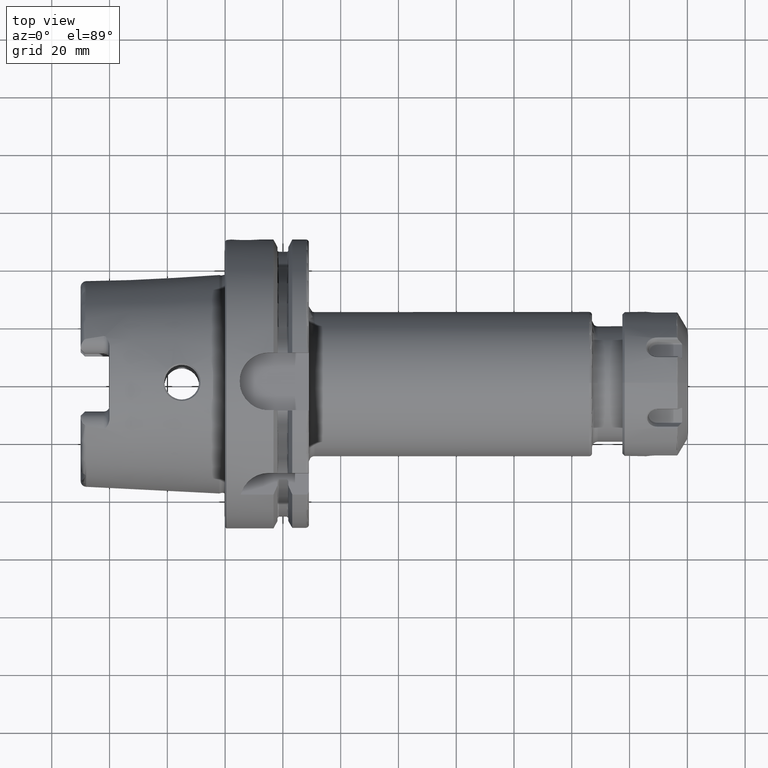
[diagram: clean part render]
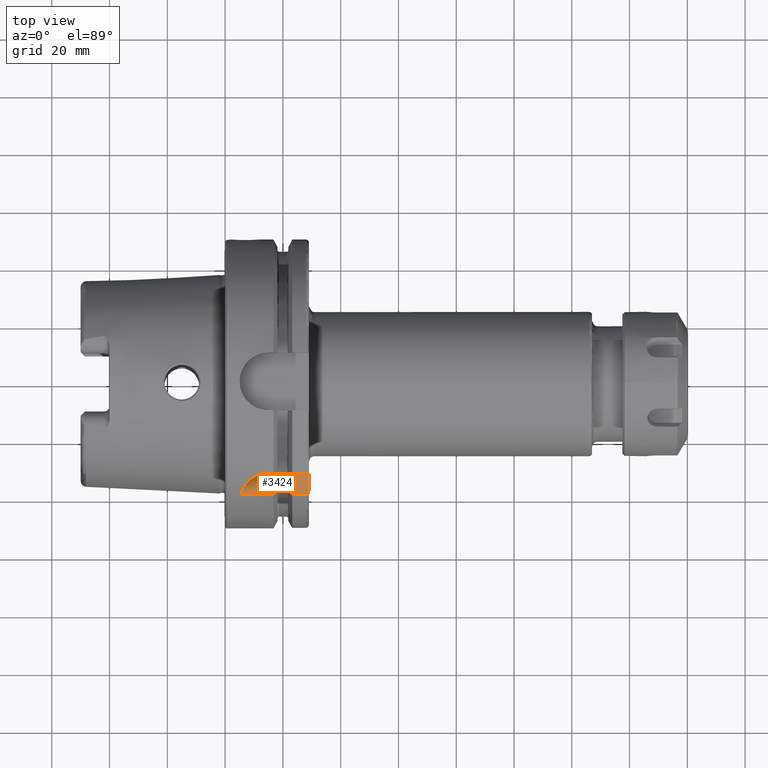
[diagram: same view with one face highlighted and labeled with its STEP entity id]
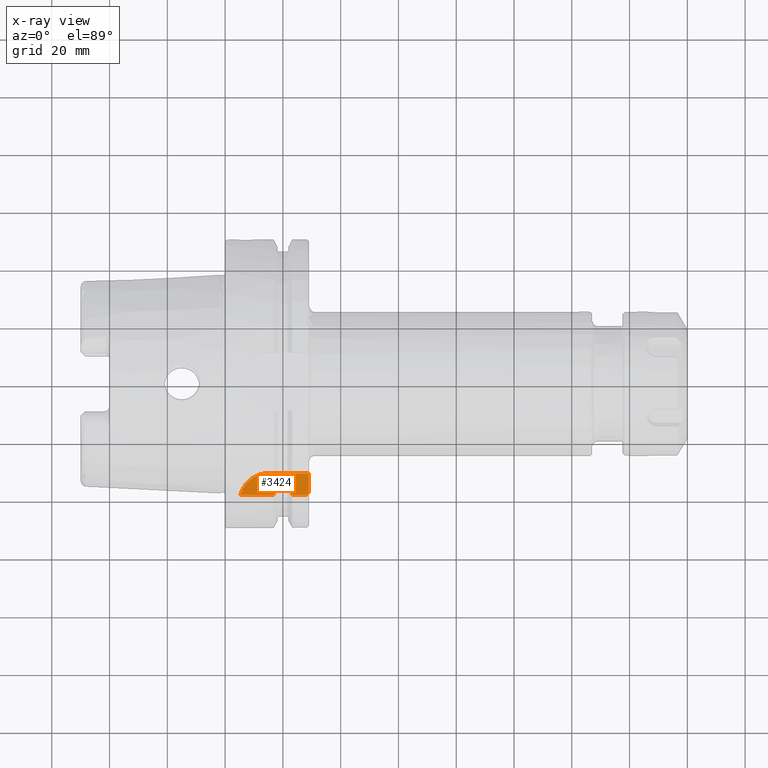
[diagram: x-ray of the same camera — body ghosted, the highlighted face saturated]
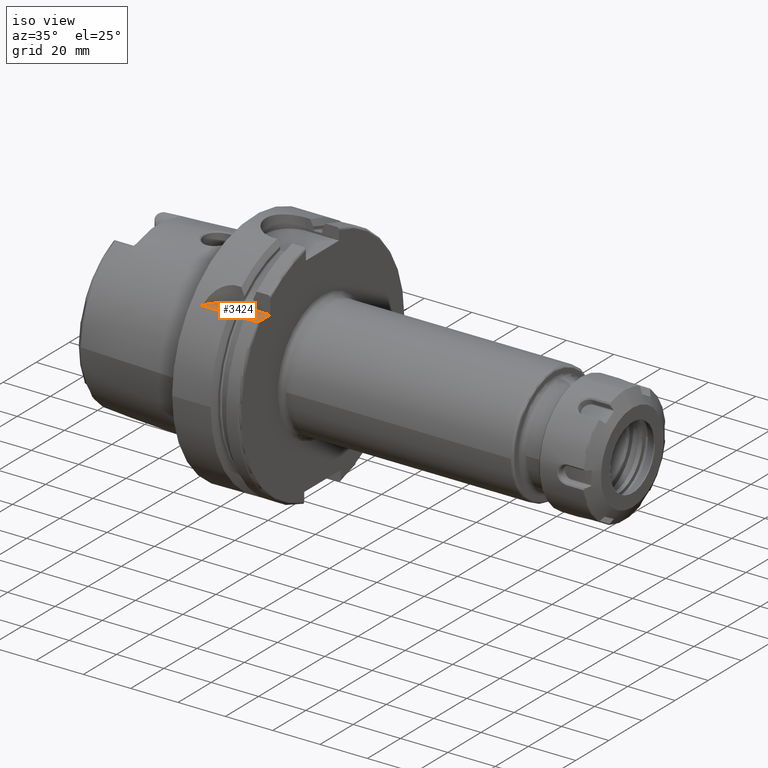
[diagram: same view with one face highlighted and labeled with its STEP entity id]
A machine part, top view. The second image highlights one B-rep face of the part: STEP entity #3424.
The next image is the same camera in x-ray: the body ghosted, the highlighted face saturated — about 0% of this face is hidden behind the body in this view.
A second angle (iso view) of the same face is appended — the face is thin or edge-on in the first view.
In plain terms, the highlighted planar face has unit normal (0, 0, 1).
Its self-contained STEP definition (entity closure, byte-faithful):
#115=(
BOUNDED_CURVE()
B_SPLINE_CURVE(2,(#6027,#6028,#6029),.UNSPECIFIED.,.F.,.F.)
B_SPLINE_CURVE_WITH_KNOTS((3,3),(0.,0.343884390880418),.UNSPECIFIED.)
CURVE()
GEOMETRIC_REPRESENTATION_ITEM()
RATIONAL_B_SPLINE_CURVE((1.,1.00052016256811,1.))
REPRESENTATION_ITEM('')
);
#116=(
BOUNDED_CURVE()
B_SPLINE_CURVE(2,(#6059,#6060,#6061),.UNSPECIFIED.,.F.,.F.)
B_SPLINE_CURVE_WITH_KNOTS((3,3),(0.,0.343884390880419),.UNSPECIFIED.)
CURVE()
GEOMETRIC_REPRESENTATION_ITEM()
RATIONAL_B_SPLINE_CURVE((1.,1.00052016257005,1.))
REPRESENTATION_ITEM('')
);
#171=B_SPLINE_CURVE_WITH_KNOTS('',3,(#6033,#6034,#6035,#6036,#6037,#6038,
#6039,#6040,#6041,#6042),.UNSPECIFIED.,.F.,.F.,(4,2,2,2,4),(-0.175716275951497,
-0.159022149647861,-0.139262857016594,-0.115342898112829,-0.0876407705892814),
 .UNSPECIFIED.);
#172=B_SPLINE_CURVE_WITH_KNOTS('',3,(#6046,#6047,#6048,#6049,#6050,#6051,
#6052,#6053,#6054,#6055),.UNSPECIFIED.,.F.,.F.,(4,2,2,2,4),(0.0876407705892814,
0.115342898112828,0.139262857016592,0.15902214964786,0.175716275951495),
 .UNSPECIFIED.);
#173=B_SPLINE_CURVE_WITH_KNOTS('',3,(#6064,#6065,#6066,#6067,#6068,#6069,
#6070,#6071,#6072,#6073),.UNSPECIFIED.,.F.,.F.,(4,2,2,2,4),(-0.170825962094808,
-0.118543630596578,-0.0729156509442915,-0.0340271521483428,0.),
 .UNSPECIFIED.);
#320=PLANE('',#3766);
#460=FACE_OUTER_BOUND('',#670,.T.);
#670=EDGE_LOOP('',(#2506,#2507,#2508,#2509,#2510,#2511,#2512,#2513,#2514,
#2515,#2516,#2517,#2518));
#851=LINE('',#5093,#1039);
#894=LINE('',#5974,#1082);
#899=LINE('',#6025,#1087);
#900=LINE('',#6031,#1088);
#901=LINE('',#6044,#1089);
#902=LINE('',#6057,#1090);
#903=LINE('',#6063,#1091);
#1039=VECTOR('',#4103,10.);
#1082=VECTOR('',#4320,10.);
#1087=VECTOR('',#4327,10.);
#1088=VECTOR('',#4328,10.);
#1089=VECTOR('',#4329,10.);
#1090=VECTOR('',#4330,10.);
#1091=VECTOR('',#4331,10.);
#1280=CIRCLE('',#3764,10.);
#1428=VERTEX_POINT('',#5091);
#1429=VERTEX_POINT('',#5092);
#1523=VERTEX_POINT('',#5954);
#1525=VERTEX_POINT('',#5968);
#1535=VERTEX_POINT('',#6024);
#1536=VERTEX_POINT('',#6026);
#1537=VERTEX_POINT('',#6030);
#1538=VERTEX_POINT('',#6032);
#1539=VERTEX_POINT('',#6043);
#1540=VERTEX_POINT('',#6045);
#1541=VERTEX_POINT('',#6056);
#1542=VERTEX_POINT('',#6058);
#1543=VERTEX_POINT('',#6062);
#1768=EDGE_CURVE('',#1428,#1429,#851,.T.);
#1894=EDGE_CURVE('',#1525,#1523,#1280,.T.);
#1897=EDGE_CURVE('',#1428,#1525,#894,.T.);
#1907=EDGE_CURVE('',#1535,#1523,#899,.T.);
#1908=EDGE_CURVE('',#1536,#1535,#115,.T.);
#1909=EDGE_CURVE('',#1537,#1536,#900,.T.);
#1910=EDGE_CURVE('',#1538,#1537,#171,.T.);
#1911=EDGE_CURVE('',#1539,#1538,#901,.T.);
#1912=EDGE_CURVE('',#1540,#1539,#172,.T.);
#1913=EDGE_CURVE('',#1541,#1540,#902,.T.);
#1914=EDGE_CURVE('',#1542,#1541,#116,.T.);
#1915=EDGE_CURVE('',#1543,#1542,#903,.T.);
#1916=EDGE_CURVE('',#1429,#1543,#173,.T.);
#2506=ORIENTED_EDGE('',*,*,#1907,.F.);
#2507=ORIENTED_EDGE('',*,*,#1908,.F.);
#2508=ORIENTED_EDGE('',*,*,#1909,.F.);
#2509=ORIENTED_EDGE('',*,*,#1910,.F.);
#2510=ORIENTED_EDGE('',*,*,#1911,.F.);
#2511=ORIENTED_EDGE('',*,*,#1912,.F.);
#2512=ORIENTED_EDGE('',*,*,#1913,.F.);
#2513=ORIENTED_EDGE('',*,*,#1914,.F.);
#2514=ORIENTED_EDGE('',*,*,#1915,.F.);
#2515=ORIENTED_EDGE('',*,*,#1916,.F.);
#2516=ORIENTED_EDGE('',*,*,#1768,.F.);
#2517=ORIENTED_EDGE('',*,*,#1897,.T.);
#2518=ORIENTED_EDGE('',*,*,#1894,.T.);
#3424=ADVANCED_FACE('',(#460),#320,.T.);
#3764=AXIS2_PLACEMENT_3D('',#5969,#4314,#4315);
#3766=AXIS2_PLACEMENT_3D('',#6023,#4325,#4326);
#4103=DIRECTION('',(0.,-1.,0.));
#4314=DIRECTION('center_axis',(0.,0.,1.));
#4315=DIRECTION('ref_axis',(0.,1.,0.));
#4320=DIRECTION('',(-1.,3.17206578464331E-16,0.));
#4325=DIRECTION('center_axis',(0.,0.,1.));
#4326=DIRECTION('ref_axis',(1.,0.,0.));
#4327=DIRECTION('',(-1.,0.,0.));
#4328=DIRECTION('',(0.,-1.,0.));
#4329=DIRECTION('',(-1.,0.,0.));
#4330=DIRECTION('',(0.,1.,0.));
#4331=DIRECTION('',(-1.,0.,0.));
#5091=CARTESIAN_POINT('',(29.,-31.5,31.5));
#5092=CARTESIAN_POINT('',(29.,-37.5333185316726,31.5));
#5093=CARTESIAN_POINT('',(29.,-18.25,31.5));
#5954=CARTESIAN_POINT('',(5.36310214079494,-38.8297566307078,31.5));
#5968=CARTESIAN_POINT('',(15.,-31.5,31.5));
#5969=CARTESIAN_POINT('Origin',(15.,-41.5,31.5));
#5974=CARTESIAN_POINT('',(29.,-31.5,31.5));
#6023=CARTESIAN_POINT('Origin',(17.,-36.5,31.5));
#6024=CARTESIAN_POINT('',(16.7379709790786,-38.8297566307078,31.5));
#6025=CARTESIAN_POINT('',(8.61898548953931,-38.8297566307078,31.5));
#6026=CARTESIAN_POINT('',(18.125,-35.6830642593065,31.5));
#6027=CARTESIAN_POINT('Ctrl Pts',(18.125,-35.6830642593065,31.5));
#6028=CARTESIAN_POINT('Ctrl Pts',(17.4607727557242,-37.2176818849687,31.5));
#6029=CARTESIAN_POINT('Ctrl Pts',(16.7379709790786,-38.8297566307079,31.5));
#6030=CARTESIAN_POINT('',(18.125,-34.2052627529741,31.5));
#6031=CARTESIAN_POINT('',(18.125,5.,31.5));
#6032=CARTESIAN_POINT('',(18.625,-33.5223805837235,31.5));
#6033=CARTESIAN_POINT('Ctrl Pts',(18.625,-33.5223805837235,31.5));
#6034=CARTESIAN_POINT('Ctrl Pts',(18.5693529123212,-33.5223805837235,31.5));
#6035=CARTESIAN_POINT('Ctrl Pts',(18.5045806209474,-33.538617945543,31.5));
#6036=CARTESIAN_POINT('Ctrl Pts',(18.3957531993943,-33.5926698815421,31.5));
#6037=CARTESIAN_POINT('Ctrl Pts',(18.3354671583148,-33.6437821851056,31.5));
#6038=CARTESIAN_POINT('Ctrl Pts',(18.2428076522704,-33.7560891280603,31.5));
#6039=CARTESIAN_POINT('Ctrl Pts',(18.1981986617216,-33.8407334953009,31.5));
#6040=CARTESIAN_POINT('Ctrl Pts',(18.1422893312478,-34.003470946295,31.5));
#6041=CARTESIAN_POINT('Ctrl Pts',(18.125,-34.1129223278956,31.5));
#6042=CARTESIAN_POINT('Ctrl Pts',(18.125,-34.2052627529741,31.5));
#6043=CARTESIAN_POINT('',(21.375,-33.5223805837235,31.5));
#6044=CARTESIAN_POINT('',(20.,-33.5223805837235,31.5));
#6045=CARTESIAN_POINT('',(21.875,-34.2052627529741,31.5));
#6046=CARTESIAN_POINT('Ctrl Pts',(21.875,-34.2052627529741,31.5));
#6047=CARTESIAN_POINT('Ctrl Pts',(21.875,-34.1129223278957,31.5));
#6048=CARTESIAN_POINT('Ctrl Pts',(21.8577106687523,-34.003470946295,31.5));
#6049=CARTESIAN_POINT('Ctrl Pts',(21.8018013382784,-33.8407334953009,31.5));
#6050=CARTESIAN_POINT('Ctrl Pts',(21.7571923477296,-33.7560891280604,31.5));
#6051=CARTESIAN_POINT('Ctrl Pts',(21.6645328416852,-33.6437821851056,31.5));
#6052=CARTESIAN_POINT('Ctrl Pts',(21.6042468006057,-33.5926698815421,31.5));
#6053=CARTESIAN_POINT('Ctrl Pts',(21.4954193790526,-33.538617945543,31.5));
#6054=CARTESIAN_POINT('Ctrl Pts',(21.4306470876788,-33.5223805837235,31.5));
#6055=CARTESIAN_POINT('Ctrl Pts',(21.375,-33.5223805837235,31.5));
#6056=CARTESIAN_POINT('',(21.875,-35.6830642593065,31.5));
#6057=CARTESIAN_POINT('',(21.875,5.54879763209582,31.5));
#6058=CARTESIAN_POINT('',(23.2620290209214,-38.8297566307078,31.5));
#6059=CARTESIAN_POINT('Ctrl Pts',(23.2620290209214,-38.8297566307078,31.5));
#6060=CARTESIAN_POINT('Ctrl Pts',(22.5392272442767,-37.2176818849707,31.5));
#6061=CARTESIAN_POINT('Ctrl Pts',(21.875,-35.6830642593065,31.5));
#6062=CARTESIAN_POINT('',(28.,-38.8297566307078,31.5));
#6063=CARTESIAN_POINT('',(25.6310145104607,-38.8297566307078,31.5));
#6064=CARTESIAN_POINT('Ctrl Pts',(29.,-37.5333185316726,31.5));
#6065=CARTESIAN_POINT('Ctrl Pts',(29.,-37.7075929700001,31.5));
#6066=CARTESIAN_POINT('Ctrl Pts',(28.9664820083304,-37.9140187901503,31.5));
#6067=CARTESIAN_POINT('Ctrl Pts',(28.8572425149189,-38.2215616508799,31.5));
#6068=CARTESIAN_POINT('Ctrl Pts',(28.7693181429129,-38.3814988424326,31.5));
#6069=CARTESIAN_POINT('Ctrl Pts',(28.5860354601279,-38.5954486383736,31.5));
#6070=CARTESIAN_POINT('Ctrl Pts',(28.4650491410143,-38.6932205975694,31.5));
#6071=CARTESIAN_POINT('Ctrl Pts',(28.2458099245109,-38.7981421072727,31.5));
#6072=CARTESIAN_POINT('Ctrl Pts',(28.1134238404945,-38.8297566307078,31.5));
#6073=CARTESIAN_POINT('Ctrl Pts',(28.,-38.8297566307078,31.5));